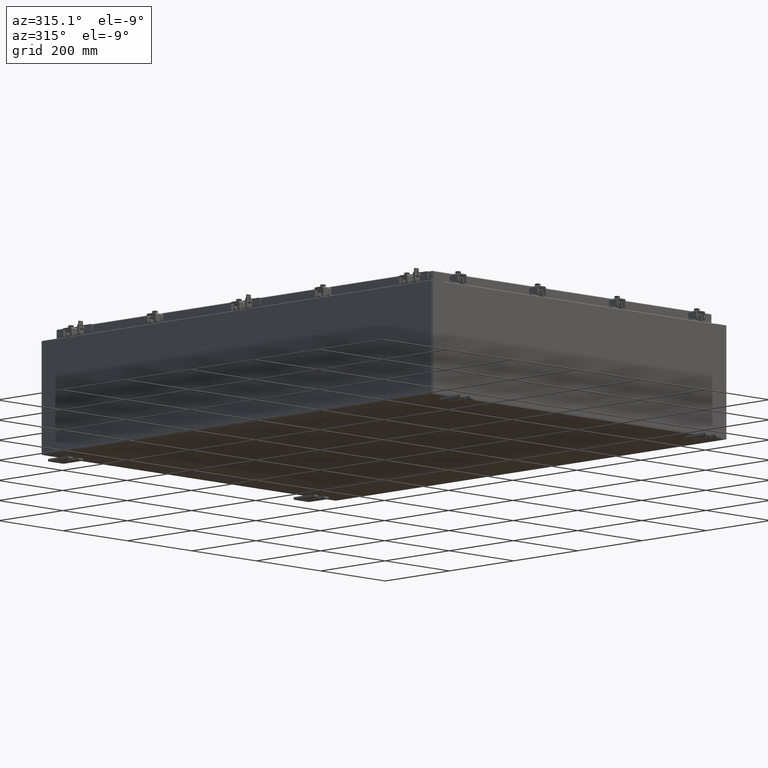
[diagram: clean part render]
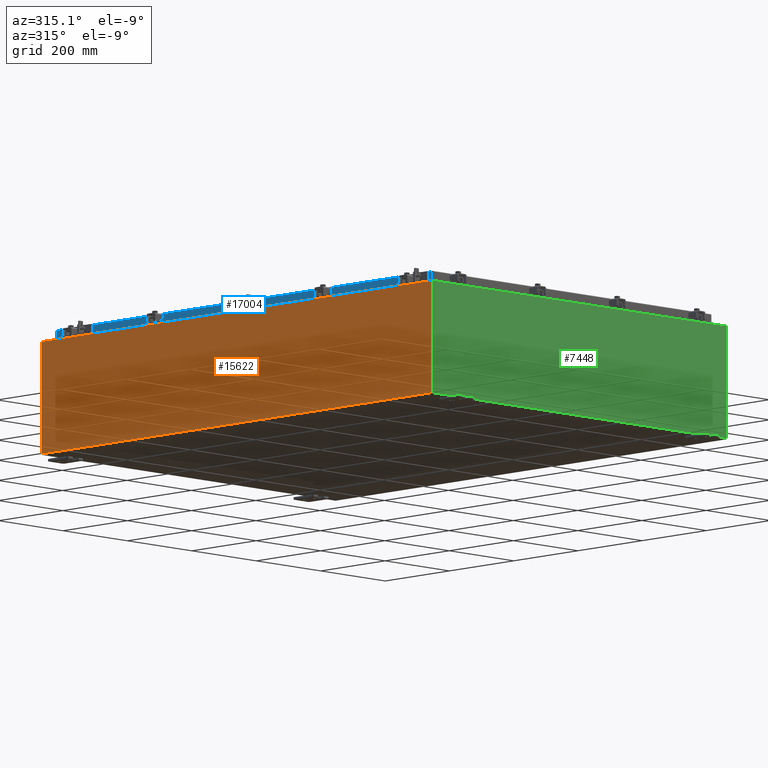
[diagram: same view with three faces highlighted in distinct colors, each labeled with its STEP entity id]
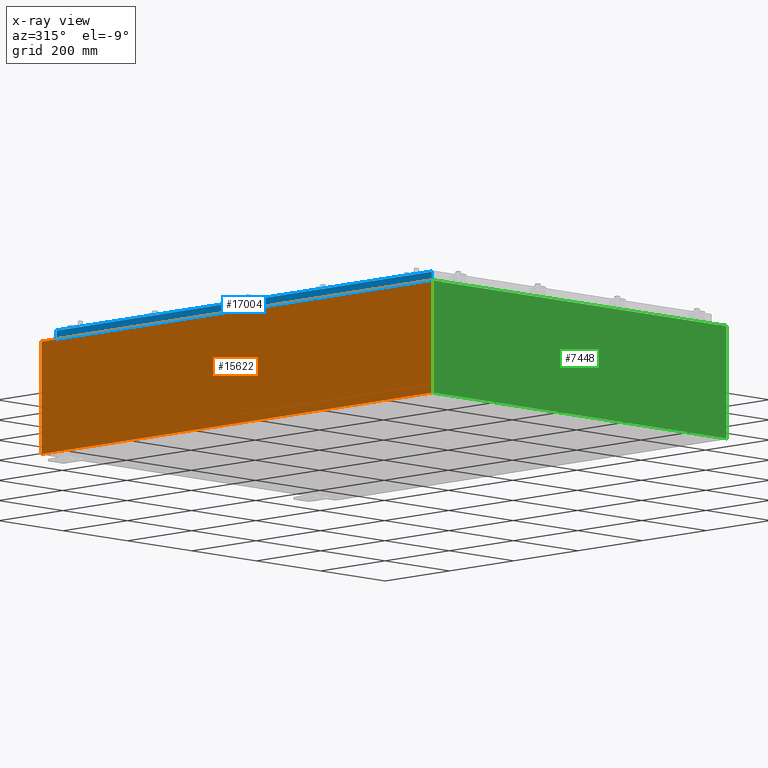
[diagram: x-ray of the same camera — body ghosted, the three highlighted faces saturated]
A machine part, auxiliary view with three faces highlighted in distinct colors.
The next image is the same camera in x-ray (body ghosted, the three faces saturated) — at least one of them is partly hidden behind the body in this view.
Their STEP definitions:

[orange] entity #15622 — the highlighted planar face has unit normal (1, 0, 0).
#45 = CARTESIAN_POINT ( 'NONE',  ( -18.00000000000000400, -23.92529999999999600, -6.367630515150756800E-014 ) ) ;
#232 = CARTESIAN_POINT ( 'NONE',  ( -18.00000000000003900, -23.92529999999998600, 9.837600000000000100 ) ) ;
#870 = DIRECTION ( 'NONE',  ( -0.0000000000000000000, 1.000000000000000000, -0.0000000000000000000 ) ) ;
#880 = EDGE_CURVE ( 'NONE', #26763, #18173, #20336, .T. ) ;
#882 = LINE ( 'NONE', #9354, #5201 ) ;
#2202 = EDGE_CURVE ( 'NONE', #7073, #24435, #882, .T. ) ;
#3468 = LINE ( 'NONE', #17877, #13477 ) ;
#4046 = DIRECTION ( 'NONE',  ( 1.000000000000000000, 0.0000000000000000000, 3.523082860860887800E-015 ) ) ;
#5201 = VECTOR ( 'NONE', #22238, 39.37007874015748100 ) ;
#5415 = CARTESIAN_POINT ( 'NONE',  ( -18.00000000000003900, -23.92529999999998900, 9.837600000000000100 ) ) ;
#7073 = VERTEX_POINT ( 'NONE', #21186 ) ;
#7555 = DIRECTION ( 'NONE',  ( 0.0000000000000000000, 1.000000000000000000, 0.0000000000000000000 ) ) ;
#8294 = CARTESIAN_POINT ( 'NONE',  ( -18.00000000000000400, -23.92529999999998600, 0.01299999999999984700 ) ) ;
#9354 = CARTESIAN_POINT ( 'NONE',  ( -18.00000000000000400, 23.92529999999998900, -6.367630515150756800E-014 ) ) ;
#10964 = VECTOR ( 'NONE', #7555, 39.37007874015748100 ) ;
#12542 = PLANE ( 'NONE',  #21228 ) ;
#13128 = ORIENTED_EDGE ( 'NONE', *, *, #14210, .F. ) ;
#13477 = VECTOR ( 'NONE', #870, 39.37007874015748100 ) ;
#13492 = ORIENTED_EDGE ( 'NONE', *, *, #880, .T. ) ;
#13745 = FACE_OUTER_BOUND ( 'NONE', #15194, .T. ) ;
#13989 = VECTOR ( 'NONE', #20139, 39.37007874015748100 ) ;
#14210 = EDGE_CURVE ( 'NONE', #26763, #24435, #3468, .T. ) ;
#15194 = EDGE_LOOP ( 'NONE', ( #23440, #16261, #13128, #13492 ) ) ;
#15622 = ADVANCED_FACE ( 'NONE', ( #13745 ), #12542, .F. ) ;
#16261 = ORIENTED_EDGE ( 'NONE', *, *, #2202, .T. ) ;
#17877 = CARTESIAN_POINT ( 'NONE',  ( -18.00000000000000400, 23.92529999999998900, 0.01299999999999984700 ) ) ;
#18173 = VERTEX_POINT ( 'NONE', #232 ) ;
#18954 = DIRECTION ( 'NONE',  ( 3.523082860860887800E-015, 0.0000000000000000000, -1.000000000000000000 ) ) ;
#19350 = EDGE_CURVE ( 'NONE', #18173, #7073, #23623, .T. ) ;
#20139 = DIRECTION ( 'NONE',  ( -3.523082860860888200E-015, 0.0000000000000000000, 1.000000000000000000 ) ) ;
#20336 = LINE ( 'NONE', #45, #13989 ) ;
#21186 = CARTESIAN_POINT ( 'NONE',  ( -18.00000000000003900, 23.92529999999998900, 9.837600000000000100 ) ) ;
#21228 = AXIS2_PLACEMENT_3D ( 'NONE', #23169, #4046, #18954 ) ;
#22238 = DIRECTION ( 'NONE',  ( 3.523082860860888200E-015, 0.0000000000000000000, -1.000000000000000000 ) ) ;
#23169 = CARTESIAN_POINT ( 'NONE',  ( -18.00000000000000400, 0.0000000000000000000, -6.367630515150756800E-014 ) ) ;
#23440 = ORIENTED_EDGE ( 'NONE', *, *, #19350, .T. ) ;
#23623 = LINE ( 'NONE', #5415, #10964 ) ;
#24435 = VERTEX_POINT ( 'NONE', #24612 ) ;
#24612 = CARTESIAN_POINT ( 'NONE',  ( -18.00000000000000400, 23.92529999999998900, 0.01299999999999984300 ) ) ;
#26763 = VERTEX_POINT ( 'NONE', #8294 ) ;

[blue] entity #17004 — the highlighted planar face has unit normal (1, 0, -0).
#18 = EDGE_CURVE ( 'NONE', #16588, #9780, #10052, .T. ) ;
#753 = VECTOR ( 'NONE', #20798, 39.37007874015748100 ) ;
#754 = ORIENTED_EDGE ( 'NONE', *, *, #10137, .F. ) ;
#1001 = CARTESIAN_POINT ( 'NONE',  ( -17.07800000000000300, -23.09399999999999400, -0.8499999999999996400 ) ) ;
#2058 = LINE ( 'NONE', #5906, #753 ) ;
#2666 = DIRECTION ( 'NONE',  ( 1.000000000000000000, 3.417889107165661600E-031, -2.818880942772360100E-015 ) ) ;
#2986 = LINE ( 'NONE', #1001, #24979 ) ;
#3692 = VECTOR ( 'NONE', #25292, 39.37007874015748100 ) ;
#3723 = AXIS2_PLACEMENT_3D ( 'NONE', #13287, #2666, #17564 ) ;
#4009 = VECTOR ( 'NONE', #9568, 39.37007874015748100 ) ;
#5363 = LINE ( 'NONE', #20191, #4009 ) ;
#5906 = CARTESIAN_POINT ( 'NONE',  ( -17.07799999999998900, -22.25515786437625500, -0.8500000000000026400 ) ) ;
#7005 = CARTESIAN_POINT ( 'NONE',  ( -17.07799999999998900, 22.25515786437623700, -0.8500000000000026400 ) ) ;
#7240 = CARTESIAN_POINT ( 'NONE',  ( -17.07799999999999900, -23.00515786437626200, -0.08770000000000007000 ) ) ;
#7398 = DIRECTION ( 'NONE',  ( -4.379057701015054300E-047, 1.000000000000000000, 1.212498568245375500E-016 ) ) ;
#8091 = ORIENTED_EDGE ( 'NONE', *, *, #18, .T. ) ;
#8897 = CARTESIAN_POINT ( 'NONE',  ( -17.07800000000000300, -23.09399999999999400, -0.8499999999999996400 ) ) ;
#8991 = PLANE ( 'NONE',  #3723 ) ;
#9568 = DIRECTION ( 'NONE',  ( 3.417889107165661600E-031, -1.000000000000000000, -9.316371385484559400E-046 ) ) ;
#9780 = VERTEX_POINT ( 'NONE', #25232 ) ;
#10052 = LINE ( 'NONE', #24232, #3692 ) ;
#10102 = VERTEX_POINT ( 'NONE', #7240 ) ;
#10137 = EDGE_CURVE ( 'NONE', #16588, #10102, #5363, .T. ) ;
#11048 = DIRECTION ( 'NONE',  ( -4.379057701015054300E-047, 1.000000000000000000, 1.212498568245375500E-016 ) ) ;
#11141 = LINE ( 'NONE', #13029, #27462 ) ;
#11252 = LINE ( 'NONE', #8897, #16897 ) ;
#11347 = ORIENTED_EDGE ( 'NONE', *, *, #20131, .F. ) ;
#11923 = CARTESIAN_POINT ( 'NONE',  ( -17.07799999999998900, -22.25515786437626200, -0.8500000000000026400 ) ) ;
#13029 = CARTESIAN_POINT ( 'NONE',  ( -17.07799999999999900, -23.00515786437626200, -0.07469999999999978000 ) ) ;
#13287 = CARTESIAN_POINT ( 'NONE',  ( -17.07799999999999900, -5.837071017217516000E-030, 4.840166239667794100E-014 ) ) ;
#13962 = VERTEX_POINT ( 'NONE', #11923 ) ;
#15938 = EDGE_CURVE ( 'NONE', #13962, #20744, #2058, .T. ) ;
#16500 = ORIENTED_EDGE ( 'NONE', *, *, #24797, .F. ) ;
#16588 = VERTEX_POINT ( 'NONE', #18343 ) ;
#16897 = VECTOR ( 'NONE', #11048, 39.37007874015748100 ) ;
#17004 = ADVANCED_FACE ( 'NONE', ( #17666 ), #8991, .F. ) ;
#17564 = DIRECTION ( 'NONE',  ( -2.818880942772360100E-015, 0.0000000000000000000, -1.000000000000000000 ) ) ;
#17666 = FACE_OUTER_BOUND ( 'NONE', #19405, .T. ) ;
#18343 = CARTESIAN_POINT ( 'NONE',  ( -17.07799999999999900, 23.00515786437626200, -0.08770000000000007000 ) ) ;
#18558 = EDGE_CURVE ( 'NONE', #20744, #9780, #2986, .T. ) ;
#19285 = ORIENTED_EDGE ( 'NONE', *, *, #18558, .F. ) ;
#19405 = EDGE_LOOP ( 'NONE', ( #754, #8091, #19285, #21224, #11347, #16500 ) ) ;
#19679 = CARTESIAN_POINT ( 'NONE',  ( -17.07800000000000300, -23.00515786437625800, -0.8499999999999996400 ) ) ;
#20131 = EDGE_CURVE ( 'NONE', #25690, #13962, #11252, .T. ) ;
#20191 = CARTESIAN_POINT ( 'NONE',  ( -17.07799999999999900, -23.09399999999999400, -0.08770000000000007000 ) ) ;
#20744 = VERTEX_POINT ( 'NONE', #7005 ) ;
#20798 = DIRECTION ( 'NONE',  ( -0.0000000000000000000, 1.000000000000000000, -0.0000000000000000000 ) ) ;
#21224 = ORIENTED_EDGE ( 'NONE', *, *, #15938, .F. ) ;
#23654 = DIRECTION ( 'NONE',  ( -2.818880942772360100E-015, 6.982962677686265900E-015, -1.000000000000000000 ) ) ;
#24232 = CARTESIAN_POINT ( 'NONE',  ( -17.07799999999999900, 23.00515786437626200, 2.090458211578980900E-013 ) ) ;
#24797 = EDGE_CURVE ( 'NONE', #10102, #25690, #11141, .T. ) ;
#24979 = VECTOR ( 'NONE', #7398, 39.37007874015748100 ) ;
#25232 = CARTESIAN_POINT ( 'NONE',  ( -17.07800000000000300, 23.00515786437626200, -0.8499999999999940900 ) ) ;
#25292 = DIRECTION ( 'NONE',  ( -2.818880942772360100E-015, 6.982962677686265900E-015, -1.000000000000000000 ) ) ;
#25690 = VERTEX_POINT ( 'NONE', #19679 ) ;
#27462 = VECTOR ( 'NONE', #23654, 39.37007874015748100 ) ;

[green] entity #7448 — the highlighted planar face has unit normal (-0, 1, -0).
#120 = CARTESIAN_POINT ( 'NONE',  ( 16.67454999999957700, -0.0000000000000000000, -1.447541957108341500E-012 ) ) ;
#624 = VERTEX_POINT ( 'NONE', #826 ) ;
#644 = CARTESIAN_POINT ( 'NONE',  ( -16.67455000000000000, 0.0000000000000000000, 4.874950000000000100 ) ) ;
#826 = CARTESIAN_POINT ( 'NONE',  ( 16.63720000000000400, 0.0000000000000000000, 4.912300000000000100 ) ) ;
#1021 = ORIENTED_EDGE ( 'NONE', *, *, #13658, .F. ) ;
#1152 = LINE ( 'NONE', #10710, #27460 ) ;
#1736 = CARTESIAN_POINT ( 'NONE',  ( 17.92530000000000000, 0.0000000000000000000, 4.925300000000000000 ) ) ;
#1775 = LINE ( 'NONE', #12336, #8109 ) ;
#2604 = EDGE_CURVE ( 'NONE', #15255, #624, #25510, .T. ) ;
#2771 = CARTESIAN_POINT ( 'NONE',  ( -17.92530000000000000, 0.0000000000000000000, 4.925300000000000000 ) ) ;
#2937 = CARTESIAN_POINT ( 'NONE',  ( -16.67455000000000000, 0.0000000000000000000, 4.925300000000000000 ) ) ;
#3121 = ORIENTED_EDGE ( 'NONE', *, *, #4017, .F. ) ;
#3270 = CARTESIAN_POINT ( 'NONE',  ( -17.92530000000000000, 0.0000000000000000000, 4.925300000000000000 ) ) ;
#3350 = CARTESIAN_POINT ( 'NONE',  ( -17.92530000000000000, 0.0000000000000000000, 4.925300000000000000 ) ) ;
#3706 = VERTEX_POINT ( 'NONE', #26886 ) ;
#3832 = ORIENTED_EDGE ( 'NONE', *, *, #12609, .F. ) ;
#4017 = EDGE_CURVE ( 'NONE', #20156, #18422, #17099, .T. ) ;
#4153 = VECTOR ( 'NONE', #9687, 39.37007874015748100 ) ;
#4177 = VECTOR ( 'NONE', #25617, 39.37007874015748100 ) ;
#4334 = DIRECTION ( 'NONE',  ( -0.0000000000000000000, 1.000000000000000000, -0.0000000000000000000 ) ) ;
#5049 = CARTESIAN_POINT ( 'NONE',  ( 16.65587500000000200, 0.0000000000000000000, 4.874950000000000100 ) ) ;
#5067 = CARTESIAN_POINT ( 'NONE',  ( -16.63720000000000400, -7.171100983368691200E-016, 4.912300000000000100 ) ) ;
#5155 = LINE ( 'NONE', #22750, #27139 ) ;
#6187 = VERTEX_POINT ( 'NONE', #24015 ) ;
#6214 = EDGE_CURVE ( 'NONE', #26548, #6651, #11217, .T. ) ;
#6264 = AXIS2_PLACEMENT_3D ( 'NONE', #20676, #12197, #27096 ) ;
#6629 = CARTESIAN_POINT ( 'NONE',  ( -16.63720000000000400, -7.171100983368691200E-016, 4.912300000000000100 ) ) ;
#6651 = VERTEX_POINT ( 'NONE', #2937 ) ;
#7201 = DIRECTION ( 'NONE',  ( 0.0000000000000000000, 0.0000000000000000000, -1.000000000000000000 ) ) ;
#7417 = EDGE_CURVE ( 'NONE', #26239, #26548, #16138, .T. ) ;
#7448 = ADVANCED_FACE ( 'NONE', ( #9834 ), #18536, .F. ) ;
#8084 = LINE ( 'NONE', #6629, #9423 ) ;
#8109 = VECTOR ( 'NONE', #25107, 39.37007874015748100 ) ;
#8134 = CARTESIAN_POINT ( 'NONE',  ( 16.63720000000000400, 0.0000000000000000000, 0.0000000000000000000 ) ) ;
#8508 = VECTOR ( 'NONE', #10936, 39.37007874015748100 ) ;
#8701 = CARTESIAN_POINT ( 'NONE',  ( 16.63720000000000400, 0.0000000000000000000, 4.874950000000000100 ) ) ;
#8852 = EDGE_CURVE ( 'NONE', #10838, #624, #8084, .T. ) ;
#9098 = ORIENTED_EDGE ( 'NONE', *, *, #7417, .T. ) ;
#9423 = VECTOR ( 'NONE', #19378, 39.37007874015748100 ) ;
#9687 = DIRECTION ( 'NONE',  ( -0.0000000000000000000, -0.0000000000000000000, 1.000000000000000000 ) ) ;
#9731 = DIRECTION ( 'NONE',  ( 0.0000000000000000000, 0.0000000000000000000, 1.000000000000000000 ) ) ;
#9834 = FACE_OUTER_BOUND ( 'NONE', #14141, .T. ) ;
#10710 = CARTESIAN_POINT ( 'NONE',  ( 17.92530000000000000, 0.0000000000000000000, 4.925300000000000000 ) ) ;
#10838 = VERTEX_POINT ( 'NONE', #5067 ) ;
#10936 = DIRECTION ( 'NONE',  ( 1.000000000000000000, 0.0000000000000000000, 0.0000000000000000000 ) ) ;
#11217 = LINE ( 'NONE', #2771, #26193 ) ;
#11533 = CARTESIAN_POINT ( 'NONE',  ( -16.63720000000000400, -0.0000000000000000000, 4.874950000000000100 ) ) ;
#11803 = CARTESIAN_POINT ( 'NONE',  ( -16.67455000000000000, -0.0000000000000000000, 0.0000000000000000000 ) ) ;
#11818 = ORIENTED_EDGE ( 'NONE', *, *, #15072, .T. ) ;
#12197 = DIRECTION ( 'NONE',  ( 0.0000000000000000000, -1.000000000000000000, 0.0000000000000000000 ) ) ;
#12203 = DIRECTION ( 'NONE',  ( 0.0000000000000000000, 0.0000000000000000000, -1.000000000000000000 ) ) ;
#12336 = CARTESIAN_POINT ( 'NONE',  ( -17.92530000000000000, 0.0000000000000000000, -4.925300000000000000 ) ) ;
#12413 = DIRECTION ( 'NONE',  ( 0.0000000000000000000, 0.0000000000000000000, 1.000000000000000000 ) ) ;
#12609 = EDGE_CURVE ( 'NONE', #18422, #6651, #27287, .T. ) ;
#13658 = EDGE_CURVE ( 'NONE', #6187, #3706, #21195, .T. ) ;
#13883 = CARTESIAN_POINT ( 'NONE',  ( 17.92530000000000000, 0.0000000000000000000, -4.925300000000000000 ) ) ;
#14141 = EDGE_LOOP ( 'NONE', ( #3832, #3121, #27239, #21099, #26513, #19518, #1021, #21425, #25980, #11818, #9098, #18297 ) ) ;
#14158 = VECTOR ( 'NONE', #12413, 39.37007874015748100 ) ;
#14551 = EDGE_CURVE ( 'NONE', #25315, #23274, #1152, .T. ) ;
#15072 = EDGE_CURVE ( 'NONE', #23274, #26239, #1775, .T. ) ;
#15255 = VERTEX_POINT ( 'NONE', #8701 ) ;
#15932 = VECTOR ( 'NONE', #9731, 39.37007874015748100 ) ;
#16138 = LINE ( 'NONE', #3270, #4153 ) ;
#17092 = CARTESIAN_POINT ( 'NONE',  ( -16.65587500000000200, 0.0000000000000000000, 4.874950000000000100 ) ) ;
#17099 = CIRCLE ( 'NONE', #25404, 0.01867499999999949400 ) ;
#17114 = DIRECTION ( 'NONE',  ( 0.0000000000000000000, 0.0000000000000000000, -1.000000000000000000 ) ) ;
#18297 = ORIENTED_EDGE ( 'NONE', *, *, #6214, .T. ) ;
#18422 = VERTEX_POINT ( 'NONE', #644 ) ;
#18536 = PLANE ( 'NONE',  #6264 ) ;
#19205 = CIRCLE ( 'NONE', #27357, 0.01867499999999949400 ) ;
#19235 = DIRECTION ( 'NONE',  ( 0.0000000000000000000, 0.0000000000000000000, -1.000000000000000000 ) ) ;
#19378 = DIRECTION ( 'NONE',  ( 1.000000000000000000, 0.0000000000000000000, 0.0000000000000000000 ) ) ;
#19518 = ORIENTED_EDGE ( 'NONE', *, *, #20814, .F. ) ;
#19954 = DIRECTION ( 'NONE',  ( -0.0000000000000000000, 1.000000000000000000, -0.0000000000000000000 ) ) ;
#20156 = VERTEX_POINT ( 'NONE', #11533 ) ;
#20676 = CARTESIAN_POINT ( 'NONE',  ( 0.0000000000000000000, 0.0000000000000000000, 0.0000000000000000000 ) ) ;
#20814 = EDGE_CURVE ( 'NONE', #3706, #15255, #19205, .T. ) ;
#21099 = ORIENTED_EDGE ( 'NONE', *, *, #8852, .T. ) ;
#21195 = LINE ( 'NONE', #120, #4177 ) ;
#21425 = ORIENTED_EDGE ( 'NONE', *, *, #22981, .T. ) ;
#22750 = CARTESIAN_POINT ( 'NONE',  ( -16.63720000000000400, -0.0000000000000000000, 0.0000000000000000000 ) ) ;
#22981 = EDGE_CURVE ( 'NONE', #6187, #25315, #24833, .T. ) ;
#23274 = VERTEX_POINT ( 'NONE', #13883 ) ;
#23679 = CARTESIAN_POINT ( 'NONE',  ( -17.92530000000000000, 0.0000000000000000000, 4.925300000000000000 ) ) ;
#23784 = CARTESIAN_POINT ( 'NONE',  ( -17.92530000000000000, 0.0000000000000000000, -4.925300000000000000 ) ) ;
#24015 = CARTESIAN_POINT ( 'NONE',  ( 16.67455000000000700, 0.0000000000000000000, 4.925300000000000000 ) ) ;
#24114 = DIRECTION ( 'NONE',  ( 1.000000000000000000, 0.0000000000000000000, 0.0000000000000000000 ) ) ;
#24561 = EDGE_CURVE ( 'NONE', #10838, #20156, #5155, .T. ) ;
#24833 = LINE ( 'NONE', #23679, #8508 ) ;
#25107 = DIRECTION ( 'NONE',  ( -1.000000000000000000, -0.0000000000000000000, -0.0000000000000000000 ) ) ;
#25315 = VERTEX_POINT ( 'NONE', #1736 ) ;
#25404 = AXIS2_PLACEMENT_3D ( 'NONE', #17092, #4334, #19235 ) ;
#25510 = LINE ( 'NONE', #8134, #14158 ) ;
#25617 = DIRECTION ( 'NONE',  ( -8.681145560800009800E-014, 0.0000000000000000000, -1.000000000000000000 ) ) ;
#25980 = ORIENTED_EDGE ( 'NONE', *, *, #14551, .T. ) ;
#26193 = VECTOR ( 'NONE', #24114, 39.37007874015748100 ) ;
#26239 = VERTEX_POINT ( 'NONE', #23784 ) ;
#26513 = ORIENTED_EDGE ( 'NONE', *, *, #2604, .F. ) ;
#26548 = VERTEX_POINT ( 'NONE', #3350 ) ;
#26886 = CARTESIAN_POINT ( 'NONE',  ( 16.67455000000000000, 0.0000000000000000000, 4.874950000000000100 ) ) ;
#27096 = DIRECTION ( 'NONE',  ( 0.0000000000000000000, -0.0000000000000000000, -1.000000000000000000 ) ) ;
#27139 = VECTOR ( 'NONE', #12203, 39.37007874015748100 ) ;
#27239 = ORIENTED_EDGE ( 'NONE', *, *, #24561, .F. ) ;
#27287 = LINE ( 'NONE', #11803, #15932 ) ;
#27357 = AXIS2_PLACEMENT_3D ( 'NONE', #5049, #19954, #7201 ) ;
#27460 = VECTOR ( 'NONE', #17114, 39.37007874015748100 ) ;